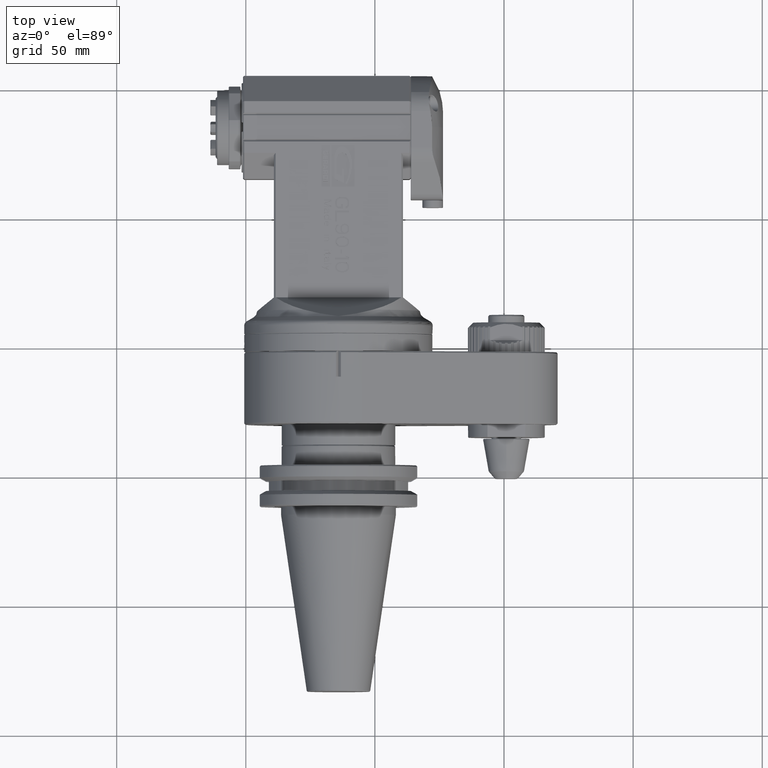
[diagram: clean part render]
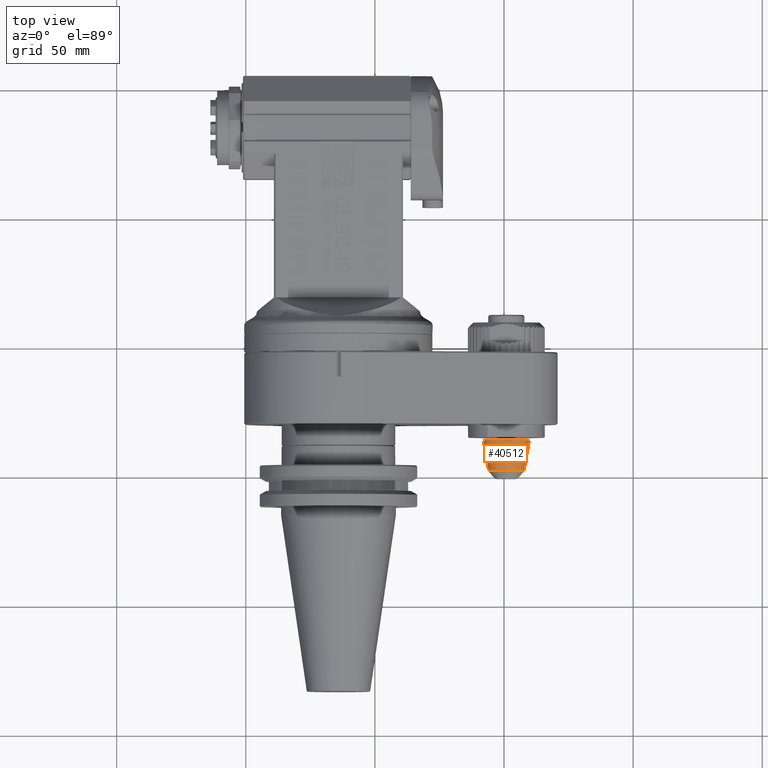
[diagram: same view with one face highlighted and labeled with its STEP entity id]
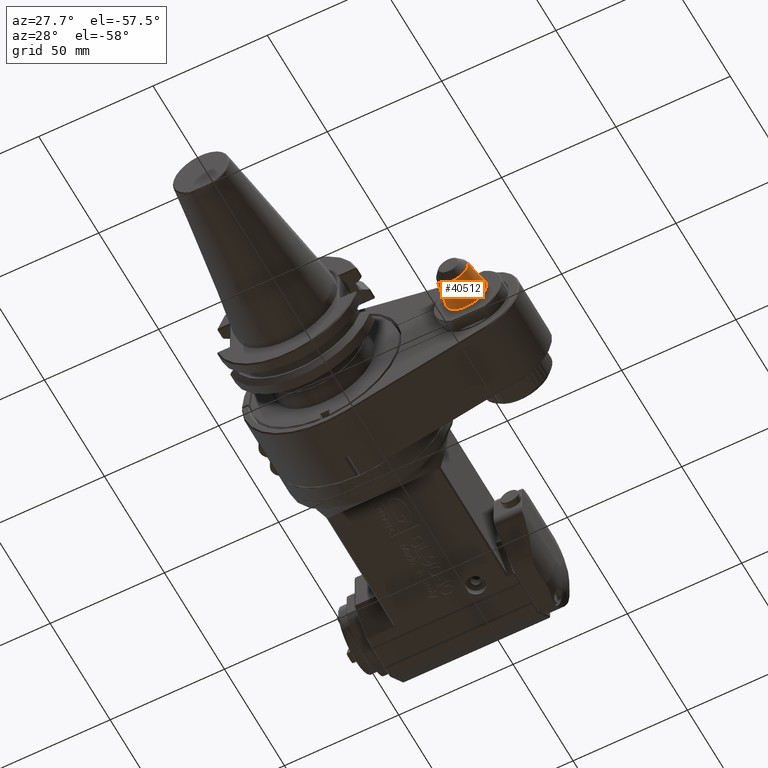
[diagram: same view with one face highlighted and labeled with its STEP entity id]
A machine part, top view. The second image highlights one B-rep face of the part: STEP entity #40512.
A second angle (auxiliary view) of the same face is appended — the face is thin or edge-on in the first view.
In plain terms, the highlighted conical surface has half-angle 10 deg.
Its self-contained STEP definition (entity closure, byte-faithful):
#316=CONICAL_SURFACE('',#43279,7.965302560236,0.174532925199433);
#1679=CIRCLE('',#43277,9.);
#1680=CIRCLE('',#43278,9.);
#1681=CIRCLE('',#43280,6.930605120471);
#1682=CIRCLE('',#43281,6.930605120471);
#3700=FACE_OUTER_BOUND('',#5986,.T.);
#5986=EDGE_LOOP('',(#35468,#35469,#35470,#35471,#35472,#35473));
#10563=LINE('',#70199,#15222);
#15222=VECTOR('',#52823,7.965302560236);
#19095=VERTEX_POINT('',#70192);
#19096=VERTEX_POINT('',#70193);
#19097=VERTEX_POINT('',#70198);
#19098=VERTEX_POINT('',#70200);
#24648=EDGE_CURVE('',#19095,#19096,#1679,.T.);
#24649=EDGE_CURVE('',#19096,#19095,#1680,.T.);
#24651=EDGE_CURVE('',#19095,#19097,#10563,.T.);
#24652=EDGE_CURVE('',#19098,#19097,#1681,.T.);
#24653=EDGE_CURVE('',#19097,#19098,#1682,.T.);
#35468=ORIENTED_EDGE('',*,*,#24648,.T.);
#35469=ORIENTED_EDGE('',*,*,#24649,.T.);
#35470=ORIENTED_EDGE('',*,*,#24651,.T.);
#35471=ORIENTED_EDGE('',*,*,#24652,.F.);
#35472=ORIENTED_EDGE('',*,*,#24653,.F.);
#35473=ORIENTED_EDGE('',*,*,#24651,.F.);
#40512=ADVANCED_FACE('',(#3700),#316,.T.);
#43277=AXIS2_PLACEMENT_3D('',#70194,#52816,#52817);
#43278=AXIS2_PLACEMENT_3D('',#70195,#52818,#52819);
#43279=AXIS2_PLACEMENT_3D('',#70197,#52821,#52822);
#43280=AXIS2_PLACEMENT_3D('',#70201,#52824,#52825);
#43281=AXIS2_PLACEMENT_3D('',#70202,#52826,#52827);
#52816=DIRECTION('center_axis',(0.,-1.,0.));
#52817=DIRECTION('ref_axis',(0.,0.,1.));
#52818=DIRECTION('center_axis',(0.,-1.,0.));
#52819=DIRECTION('ref_axis',(0.,0.,1.));
#52821=DIRECTION('center_axis',(0.,1.,0.));
#52822=DIRECTION('ref_axis',(0.,0.,-1.));
#52823=DIRECTION('',(-2.12657684957577E-17,-0.984807753012208,-0.17364817766693));
#52824=DIRECTION('center_axis',(0.,-1.,0.));
#52825=DIRECTION('ref_axis',(0.,0.,-1.));
#52826=DIRECTION('center_axis',(0.,-1.,0.));
#52827=DIRECTION('ref_axis',(0.,0.,-1.));
#70192=CARTESIAN_POINT('',(65.,-13.1,9.));
#70193=CARTESIAN_POINT('',(65.,-13.1,-8.99999999999999));
#70194=CARTESIAN_POINT('Origin',(65.,-13.1,1.224646799147E-14));
#70195=CARTESIAN_POINT('Origin',(65.,-13.1,1.224646799147E-14));
#70197=CARTESIAN_POINT('Origin',(65.,-18.96806077894,1.224646799147E-14));
#70198=CARTESIAN_POINT('',(65.,-24.8361215578801,6.93060512047174));
#70199=CARTESIAN_POINT('',(65.,-18.96806077894,7.96530256023601));
#70200=CARTESIAN_POINT('',(64.9482144085472,-24.83612155788,-6.93041164638989));
#70201=CARTESIAN_POINT('Origin',(65.,-24.83612155788,1.224646799147E-14));
#70202=CARTESIAN_POINT('Origin',(65.,-24.83612155788,1.224646799147E-14));